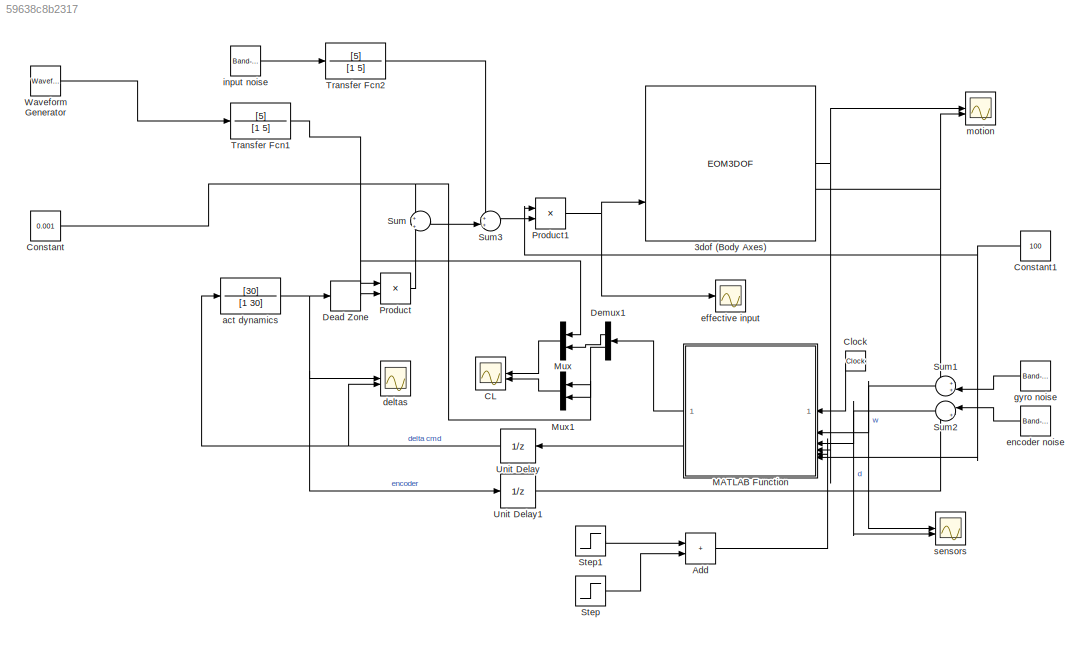
MODEL slx_59638c8b2317
KIND model
CONFIG AbsTol = auto
CONFIG EnableMultiTasking = off
CONFIG FixedStep = auto
CONFIG InitFcn = rng('shuffle')\nCl_delta_low = rand - 1;\nCl_delta_high = rand + 3;\nC0_mean = 0.001;\nC0_bound = 0;\nC0_low = C0_mean - C0_bound;\nC0_high = C0_mean + C0_bound;\nCl_delta_delay = 0.6 * rand + 0.2;\nC0_delay = 0.6 * rand + 0.2;\nstep_time = 0.5 * rand + 0.25;\nstep_size = (2*(rand < 0.5)-1) .* (1 + rand);\n
CONFIG MaxStep = auto
CONFIG MinStep = auto
CONFIG RelTol = 1e-3
CONFIG SampleTimeConstraint = Unconstrained
CONFIG SolverName = VariableStepAuto
CONFIG StartTime = 0.0
CONFIG StopTime = 50
BLOCK [EOM3DOF] 3dof (Body Axes)
  Iyy = 1
  g = 0
  v_ini = 0
BLOCK [Sum] Add
  IconShape = rectangular
BLOCK [Scope] CL
  ActiveDisplayYMaximum = 3.0961101543985672
  ActiveDisplayYMinimum = -0.34401223937761854
  DataLoggingVariableName = ScopeData2
  Floating = off
  GraphicalSettings = {"Style":{"BackgroundColor":[0.12941176470588237,0.12941176470588237,0.12941176470588237],"AxesColor":[0.07058823529411765,0.07058823529411765,0.07058823529411765],"LabelsColor":[0.8509803921568627,0.8509803921568627,0.8509803921568627],"PreserveColors":false,"Visible":[true,true,true,true],"LineStyle":["-","-","-","-"],"LineWidth":[1.5,1.5,1.5,1.5],"BarWidth":[0.9,0.9,0.9,0.9],"LineColor":["auto"...<+2633ch>
  LayoutDimensionsString = [2,1]
  MultipleDisplayCache = [{"MaxYLimMag":10,"MaxYLimReal":3.0961101543985672,"MinYLimMag":0,"MinYLimReal":-0.34401223937761854,"PlotAsMagnitudePhase":false,"ShowGrid":true,"ShowLegend":true,"Title":"%<SignalLabel>","YLabel":""},{"MaxYLimMag":10,"MaxYLimReal":0.005553800027837996,"MinYLimMag":0,"MinYLimReal":-0.0023115317403317138,"PlotAsMagnitudePhase":false,"ShowGrid":true,"ShowLegend":true,"Title":"%<SignalLabel>","YLabe...<+7ch>
  NameLocation = top
  NumInputPorts = 2
  ScopeFrameLocation = window
  ShowLegend = on
  WasSavedAsWebScope = on
  WindowPosition = [48.000000,17.000000,1440.000000,830.000000,]
BLOCK [Clock] Clock
  NameLocation = top
BLOCK [Constant] Constant
  Value = 0.001
BLOCK [Constant] Constant1
  NameLocation = top
  Value = 100
BLOCK [DeadZone] Dead Zone
  LowerValue = -deg2rad(0.5)
  UpperValue = deg2rad(0.5)
BLOCK [Demux] Demux1
  NameLocation = top
  Outputs = 2
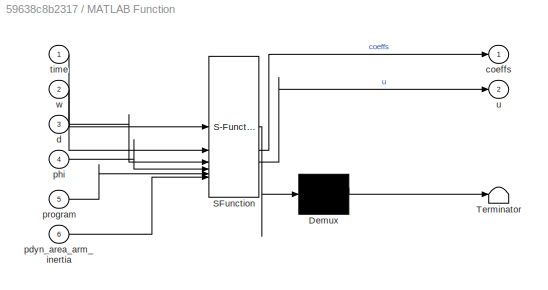
BLOCK [SubSystem] MATLAB Function
  ErrorFcn = Stateflow.Translate.translate
  NameLocation = top
  PermitHierarchicalResolution = ExplicitOnly
  SFBlockType = MATLAB Function
  TreatAsAtomicUnit = on
BLOCK [Demux] MATLAB Function/ Demux 
  Outputs = 1
BLOCK [S-Function] MATLAB Function/ SFunction 
  EnableBusSupport = off
  FunctionName = sf_sfun
  PortCounts = [6 3]
  SFcnIsStateOwnerBlock = off
  SFunctionDeploymentMode = off
  Tag = Stateflow S-Function 2
BLOCK [Terminator] MATLAB Function/ Terminator 
BLOCK [Outport] MATLAB Function/coeffs
BLOCK [Inport] MATLAB Function/d
  Port = 3
BLOCK [Inport] MATLAB Function/pdyn_area_arm_inertia
  Port = 6
BLOCK [Inport] MATLAB Function/phi
  Port = 4
BLOCK [Inport] MATLAB Function/program
  Port = 5
BLOCK [Inport] MATLAB Function/time
BLOCK [Outport] MATLAB Function/u
  Port = 2
BLOCK [Inport] MATLAB Function/w
  Port = 2
BLOCK [Mux] Mux
  DisplayOption = bar
  Inputs = 2
  NameLocation = top
BLOCK [Mux] Mux1
  DisplayOption = bar
  Inputs = 2
  NameLocation = top
BLOCK [Product] Product
BLOCK [Product] Product1
BLOCK [Step] Step
  SampleTime = 0
  Time = 10
BLOCK [Step] Step1
  After = -1
  SampleTime = 0
  Time = 18
BLOCK [Sum] Sum
  Inputs = +|+
BLOCK [Sum] Sum1
  Inputs = ++|
  NameLocation = top
BLOCK [Sum] Sum2
  Inputs = |++
  NameLocation = top
BLOCK [Sum] Sum3
  Inputs = ++|
BLOCK [TransferFcn] Transfer Fcn1
  Denominator = [1 5]
  Numerator = [5]
BLOCK [TransferFcn] Transfer Fcn2
  Denominator = [1 5]
  Numerator = [5]
BLOCK [UnitDelay] Unit Delay
  HasFrameUpgradeWarning = on
  NameLocation = top
  SampleTime = 0.01
BLOCK [UnitDelay] Unit Delay1
  HasFrameUpgradeWarning = on
  SampleTime = 0.01
BLOCK [Reference] Waveform Generator  REF=simulink/Sources/Waveform
Generator
  SourceBlock = simulink/Sources/Waveform\nGenerator
  SourceType = WaveformGenerator
BLOCK [TransferFcn] act dynamics
  Denominator = [1 30]
  NameLocation = top
  Numerator = [30]
BLOCK [Scope] deltas
  ActiveDisplayYMaximum = 0.25987430109262011
  ActiveDisplayYMinimum = -0.25294237567252237
  DataLoggingVariableName = ScopeData4
  Floating = off
  GraphicalSettings = {"AxesScalingProperties":{"AlignXAxis":"Center","AlignYAxis":"Center","AutoScaleXAxisLimits":false,"AxesScaling":"Manual","AxesScalingNumUpdates":10,"ExpandOnly":true,"ScaleAxesLimitsAtStop":false,"XAxisDataRange":100,"YAxisDataRange":80},"DisplayProperties":{"ColorOrder":["auto","auto","auto","auto","auto","auto","auto","auto","auto","auto","auto","auto","auto","auto","auto","auto","auto","auto",...<+2139ch>
  LayoutDimensionsString = [1,1]
  MultipleDisplayCache = [{"MaxYLimMag":0.32724923474893675,"MaxYLimReal":0.25987430109262011,"MinYLimMag":0,"MinYLimReal":-0.25294237567252237,"PlotAsMagnitudePhase":false,"ShowGrid":true,"ShowLegend":true,"Title":"%<SignalLabel>","YLabel":""}]
  NumInputPorts = 2
  ScopeFrameLocation = window
  ShowLegend = on
  WasSavedAsWebScope = on
  WindowPosition = [1.000000,49.000000,1536.000000,793.000000,]
BLOCK [Scope] effective input
  ActiveDisplayYMaximum = 58.996374026591177
  ActiveDisplayYMinimum = -69.373073038981218
  Floating = off
  GraphicalSettings = {"Style":{"BackgroundColor":[0.12941176470588237,0.12941176470588237,0.12941176470588237],"AxesColor":[0.07058823529411765,0.07058823529411765,0.07058823529411765],"LabelsColor":[0.8509803921568627,0.8509803921568627,0.8509803921568627],"PreserveColors":false,"Visible":[true],"LineStyle":["-"],"LineWidth":[1.5],"BarWidth":[0.9],"LineColor":["auto"],"LineFaceAlpha":[1],"LineEdgeAlpha":[1],"Marker":...<+1995ch>
  MultipleDisplayCache = [{"MaxYLimMag":69.373073038981218,"MaxYLimReal":58.996374026591177,"MinYLimMag":0,"MinYLimReal":-69.373073038981218,"PlotAsMagnitudePhase":false,"ShowGrid":true,"ShowLegend":false,"Title":"%<SignalLabel>","YLabel":""}]
  NumInputPorts = 1
  ScopeFrameLocation = window
  WasSavedAsWebScope = on
  WindowPosition = [0.000000,36.000000,1536.000000,793.000000,]
BLOCK [Reference] encoder noise  REF=simulink/Sources/Band-Limited
White Noise
  SourceBlock = simulink/Sources/Band-Limited\nWhite Noise
  SourceType = Band-Limited White Noise.
BLOCK [Reference] gyro noise  REF=simulink/Sources/Band-Limited
White Noise
  NameLocation = top
  SourceBlock = simulink/Sources/Band-Limited\nWhite Noise
  SourceType = Band-Limited White Noise.
BLOCK [Reference] input noise  REF=simulink/Sources/Band-Limited
White Noise
  SourceBlock = simulink/Sources/Band-Limited\nWhite Noise
  SourceType = Band-Limited White Noise.
BLOCK [Scope] motion
  ActiveDisplayYMaximum = 1.811334987780544
  ActiveDisplayYMinimum = -0.46681776920388296
  DataLoggingVariableName = ScopeData1
  Floating = off
  GraphicalSettings = {"Style":{"BackgroundColor":[0.12941176470588237,0.12941176470588237,0.12941176470588237],"AxesColor":[0.07058823529411765,0.07058823529411765,0.07058823529411765],"LabelsColor":[0.8509803921568627,0.8509803921568627,0.8509803921568627],"PreserveColors":false,"Visible":[true,true],"LineStyle":["-","-"],"LineWidth":[1.5,1.5],"BarWidth":[0.9,0.9],"LineColor":["auto","auto"],"LineFaceAlpha":[1,1],"Li...<+2472ch>
  LayoutDimensionsString = [2,1]
  MultipleDisplayCache = [{"MaxYLimMag":1.811334987780544,"MaxYLimReal":1.811334987780544,"MinYLimMag":0,"MinYLimReal":-0.46681776920388296,"PlotAsMagnitudePhase":false,"ShowGrid":true,"ShowLegend":true,"Title":"%<SignalLabel>","YLabel":""},{"MaxYLimMag":0.95122394322717263,"MaxYLimReal":0.49262166182888256,"MinYLimMag":0,"MinYLimReal":-0.95122394322717263,"PlotAsMagnitudePhase":false,"ShowGrid":true,"ShowLegend":true,"Ti...<+35ch>
  NumInputPorts = 2
  ScopeFrameLocation = window
  ShowLegend = on
  Visible = on
  WasSavedAsWebScope = on
  WindowPosition = [48.000000,17.000000,1440.000000,830.000000,]
BLOCK [Scope] sensors
  ActiveDisplayYMaximum = 2.1283724957411052
  ActiveDisplayYMinimum = -1.8974174144580771
  DataLoggingVariableName = ScopeData3
  Floating = off
  GraphicalSettings = {"Style":{"BackgroundColor":[0.12941176470588237,0.12941176470588237,0.12941176470588237],"AxesColor":[0.07058823529411765,0.07058823529411765,0.07058823529411765],"LabelsColor":[0.8509803921568627,0.8509803921568627,0.8509803921568627],"PreserveColors":false,"Visible":[true,true],"LineStyle":["-","-"],"LineWidth":[1.5,1.5],"BarWidth":[0.9,0.9],"LineColor":["auto","auto"],"LineFaceAlpha":[1,1],"Li...<+2408ch>
  LayoutDimensionsString = [2,1]
  MultipleDisplayCache = [{"MaxYLimMag":2.1283724957411052,"MaxYLimReal":2.1283724957411052,"MinYLimMag":0,"MinYLimReal":-1.8974174144580771,"PlotAsMagnitudePhase":false,"ShowGrid":true,"ShowLegend":true,"Title":"%<SignalLabel>","YLabel":""},{"MaxYLimMag":0.052347796303734082,"MaxYLimReal":0.052347796303734082,"MinYLimMag":0,"MinYLimReal":-0.031000918165364426,"PlotAsMagnitudePhase":false,"ShowGrid":true,"ShowLegend":true...<+39ch>
  NumInputPorts = 2
  ScopeFrameLocation = window
  ShowLegend = on
  WasSavedAsWebScope = on
  WindowPosition = [74.000000,220.000000,718.000000,562.000000,]
NET 3dof (Body Axes):1 -> MATLAB Function:4, motion:1
NET 3dof (Body Axes):2 -> Sum1:1, motion:2
LINE Add:1 -> MATLAB Function:5
LINE Clock:1 -> MATLAB Function:1
NET Constant1:1 -> MATLAB Function:6, Product1:1
NET Constant:1 -> Mux1:1, Sum:1
LINE Dead Zone:1 -> Product:2
LINE Demux1:1 -> Mux:2
LINE Demux1:2 -> Mux1:2
LINE MATLAB Function:1 -> Demux1:1
LINE MATLAB Function:2 -> Unit Delay:1
LINE Mux1:1 -> CL:2
LINE Mux:1 -> CL:1
NET Product1:1 -> 3dof (Body Axes):3, effective input:1
LINE Product:1 -> Sum:2
LINE Step1:1 -> Add:1
LINE Step:1 -> Add:2
NET Sum1:1 -> MATLAB Function:2, sensors:1
NET Sum2:1 -> MATLAB Function:3, sensors:2
LINE Sum3:1 -> Product1:2
LINE Sum:1 -> Sum3:2
NET Transfer Fcn1:1 -> Mux:1, Product:1
LINE Transfer Fcn2:1 -> Sum3:1
LINE Unit Delay1:1 -> Sum2:2
NET Unit Delay:1 -> act dynamics:1, deltas:2
LINE Waveform Generator:1 -> Transfer Fcn1:1
NET act dynamics:1 -> Dead Zone:1, Unit Delay1:1, deltas:1
LINE encoder noise:1 -> Sum2:1
LINE gyro noise:1 -> Sum1:2
LINE input noise:1 -> Transfer Fcn2:1
note: NET lines group one-source signal fan-out (src -> all destinations, sorted); 1:1 wires keep LINE
CHART MATLAB Function states=1 transitions=1
  STATE_LABEL 'eML_blk_kernel()'
  STATE_LABEL 'SCRIPT:\nfunction [coeffs, u] = processor(time, w, d, phi, program, pdyn_area_arm_inertia)\n    % p : parameters\n    % r : regressors\n    % w : angular rate measurement\n    % d : canard angle measurement / command\n    % pdyn_area_arm_inertia : everything in L except coefficients. match with gain in sim\n\n    L_min = 0.1; % limit roll control derivative for low authority conditions\n    u_max = deg2rad...<+423ch>'
CHART  states=0 transitions=0
